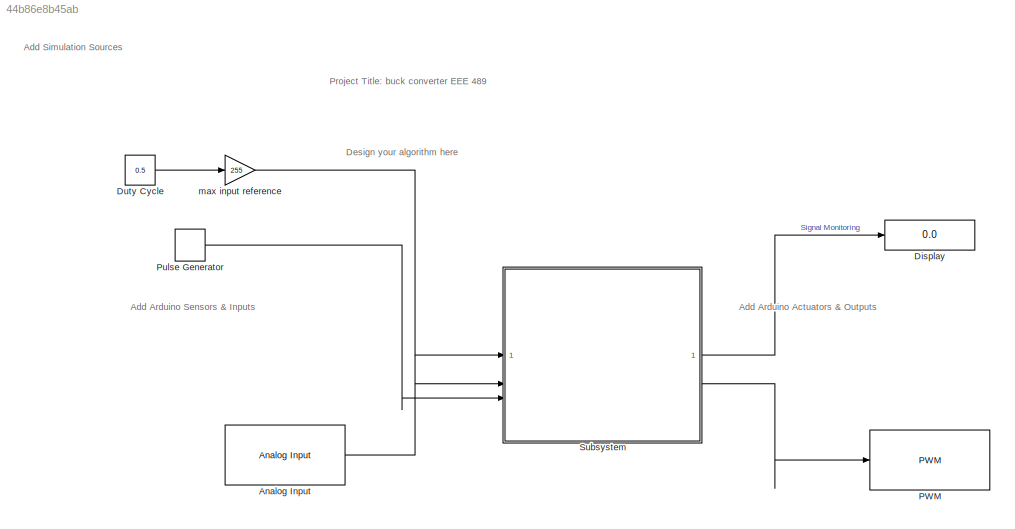
MODEL slx_44b86e8b45ab
KIND model
CONFIG AbsTol = auto
CONFIG EnableMultiTasking = on
CONFIG FixedStep = auto
CONFIG MaxStep = auto
CONFIG MinStep = auto
CONFIG RelTol = 1e-3
CONFIG SampleTimeConstraint = Unconstrained
CONFIG SolverName = FixedStepAuto
CONFIG StartTime = 0.0
CONFIG StopTime = 10
BLOCK [Reference] Analog Input  REF=arduinolib/Analog Input
  SourceBlock = arduinolib/Analog Input
  SourceType = Arduino Analog Input
BLOCK [Display] Display
  Decimation = 1
BLOCK [Constant] Duty Cycle
  OutDataTypeStr = single
  Value = 0.5
BLOCK [Reference] PWM  REF=arduinolib/PWM
  SourceBlock = arduinolib/PWM
  SourceType = Arduino PWM
BLOCK [DiscretePulseGenerator] Pulse Generator
  Period = 0.000005
  PulseType = Time based
  PulseWidth = 50
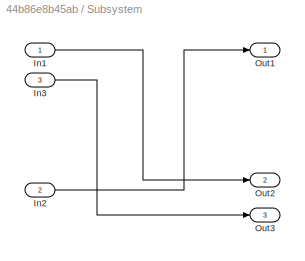
BLOCK [SubSystem] Subsystem
BLOCK [Inport] Subsystem/In1
BLOCK [Inport] Subsystem/In2
  Port = 2
BLOCK [Inport] Subsystem/In3
  Port = 3
BLOCK [Outport] Subsystem/Out1
  VectorParamsAs1DForOutWhenUnconnected = off
BLOCK [Outport] Subsystem/Out2
  Port = 2
  VectorParamsAs1DForOutWhenUnconnected = off
BLOCK [Outport] Subsystem/Out3
  Port = 3
  VectorParamsAs1DForOutWhenUnconnected = off
BLOCK [Gain] max input reference
  Gain = 255
ANNOTATION (root): Project Title: buck converter EEE 489
ANNOTATION (root): Add Arduino Actuators & Outputs
ANNOTATION (root): Add Arduino Sensors & Inputs
ANNOTATION (root): Add Simulation Sources
ANNOTATION (root): Design your algorithm here
LINE Analog Input:1 -> Subsystem:2
LINE Duty Cycle:1 -> max input reference:1
LINE Pulse Generator:1 -> Subsystem:3
LINE Subsystem/In1:1 -> Subsystem/Out2:1
LINE Subsystem/In2:1 -> Subsystem/Out1:1
LINE Subsystem/In3:1 -> Subsystem/Out3:1
LINE Subsystem:1 -> Display:1
LINE Subsystem:2 -> PWM:1
LINE max input reference:1 -> Subsystem:1
